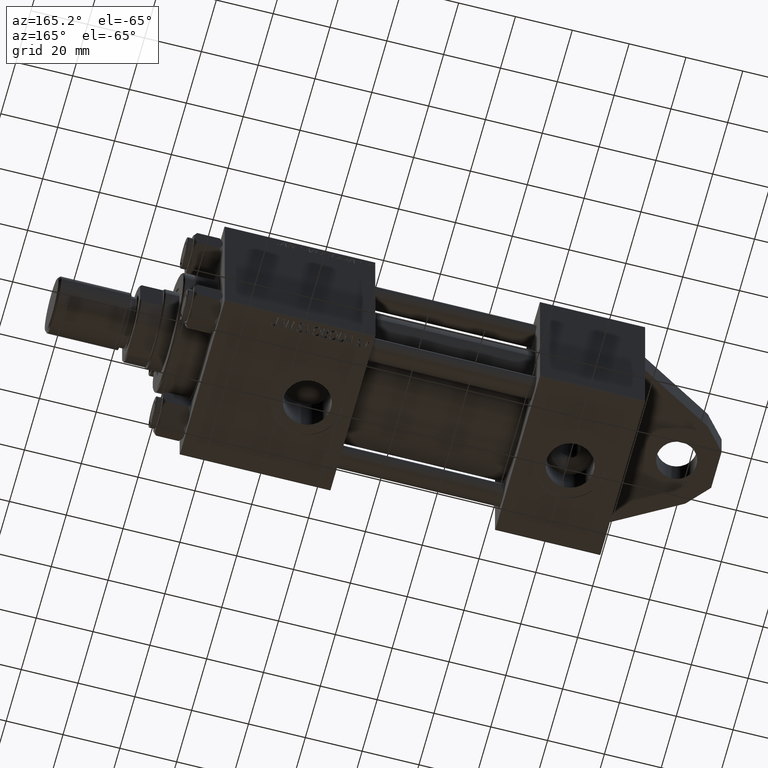
[diagram: clean part render]
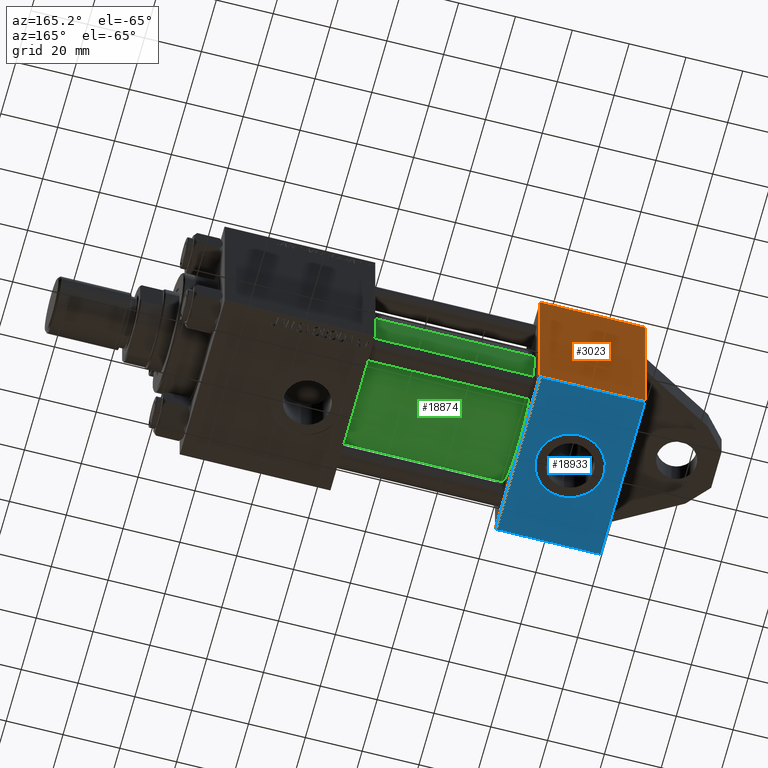
[diagram: same view with three faces highlighted in distinct colors, each labeled with its STEP entity id]
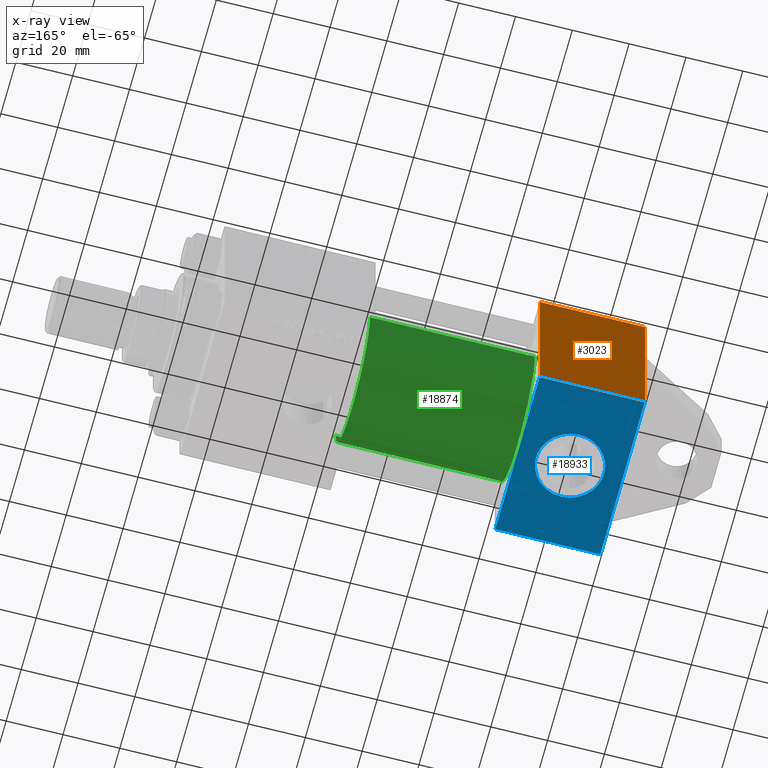
[diagram: x-ray of the same camera — body ghosted, the three highlighted faces saturated]
A machine part, auxiliary view with three faces highlighted in distinct colors.
The next image is the same camera in x-ray (body ghosted, the three faces saturated) — at least one of them is partly hidden behind the body in this view.
Their STEP definitions:

[orange] entity #3023 — the highlighted planar face has unit normal (-0, 1, 0).
#2525 = LINE ( 'NONE', #16876, #14128 ) ;
#3023 = ADVANCED_FACE ( 'NONE', ( #33371 ), #11072, .T. ) ;
#3235 = CARTESIAN_POINT ( 'NONE',  ( 0.000000000000000000, 29.99999999999999289, -30.00000000000000000 ) ) ;
#3780 = DIRECTION ( 'NONE',  ( 0.000000000000000000, 1.156482317317871725E-16, -1.000000000000000000 ) ) ;
#4664 = CARTESIAN_POINT ( 'NONE',  ( 0.000000000000000000, 5.000000000000000000, -30.00000000000000711 ) ) ;
#8124 = ORIENTED_EDGE ( 'NONE', *, *, #33372, .F. ) ;
#8287 = VERTEX_POINT ( 'NONE', #29340 ) ;
#8864 = DIRECTION ( 'NONE',  ( 0.000000000000000000, 1.000000000000000000, 0.000000000000000000 ) ) ;
#9108 = CARTESIAN_POINT ( 'NONE',  ( 37.00000000000000000, 29.49999999999997868, -30.00000000000000000 ) ) ;
#11072 = PLANE ( 'NONE',  #34641 ) ;
#12636 = DIRECTION ( 'NONE',  ( 1.000000000000000000, 0.000000000000000000, 0.000000000000000000 ) ) ;
#12799 = EDGE_CURVE ( 'NONE', #19713, #13568, #24653, .T. ) ;
#13568 = VERTEX_POINT ( 'NONE', #40231 ) ;
#14128 = VECTOR ( 'NONE', #22258, 1000.000000000000000 ) ;
#14929 = VECTOR ( 'NONE', #12636, 1000.000000000000000 ) ;
#16665 = CARTESIAN_POINT ( 'NONE',  ( 0.000000000000000000, -29.50000000000001066, -30.00000000000000711 ) ) ;
#16876 = CARTESIAN_POINT ( 'NONE',  ( 37.00000000000000000, 29.99999999999999289, -30.00000000000000000 ) ) ;
#18243 = ORIENTED_EDGE ( 'NONE', *, *, #40310, .T. ) ;
#19713 = VERTEX_POINT ( 'NONE', #28397 ) ;
#21645 = DIRECTION ( 'NONE',  ( 0.000000000000000000, 1.000000000000000000, 1.156482317317871725E-16 ) ) ;
#21669 = ORIENTED_EDGE ( 'NONE', *, *, #42961, .T. ) ;
#22258 = DIRECTION ( 'NONE',  ( 0.000000000000000000, -1.000000000000000000, -1.156482317317871725E-16 ) ) ;
#23156 = ORIENTED_EDGE ( 'NONE', *, *, #44767, .T. ) ;
#24328 = LINE ( 'NONE', #32082, #31926 ) ;
#24653 = LINE ( 'NONE', #3235, #41689 ) ;
#24857 = ORIENTED_EDGE ( 'NONE', *, *, #32729, .T. ) ;
#24909 = LINE ( 'NONE', #16665, #37898 ) ;
#26450 = CARTESIAN_POINT ( 'NONE',  ( 37.00000000000000000, 29.49999999999997868, -30.00000000000000000 ) ) ;
#26649 = VERTEX_POINT ( 'NONE', #26450 ) ;
#26730 = CARTESIAN_POINT ( 'NONE',  ( 0.000000000000000000, -5.000000000000000000, -30.00000000000000711 ) ) ;
#28215 = EDGE_LOOP ( 'NONE', ( #8124, #21669, #23156, #24857, #38469, #18243 ) ) ;
#28397 = CARTESIAN_POINT ( 'NONE',  ( 0.000000000000000000, -4.999999999999984013, -30.00000000000000355 ) ) ;
#29340 = CARTESIAN_POINT ( 'NONE',  ( 37.00000000000000000, -29.50000000000000000, -30.00000000000000711 ) ) ;
#31926 = VECTOR ( 'NONE', #38684, 1000.000000000000000 ) ;
#32082 = CARTESIAN_POINT ( 'NONE',  ( 0.000000000000000000, 29.99999999999999289, -30.00000000000000000 ) ) ;
#32729 = EDGE_CURVE ( 'NONE', #8287, #13568, #24909, .T. ) ;
#33371 = FACE_OUTER_BOUND ( 'NONE', #28215, .T. ) ;
#33372 = EDGE_CURVE ( 'NONE', #42127, #37783, #24328, .T. ) ;
#33793 = CARTESIAN_POINT ( 'NONE',  ( 0.000000000000000000, 29.49999999999997868, -30.00000000000000000 ) ) ;
#34641 = AXIS2_PLACEMENT_3D ( 'NONE', #43971, #3780, #21645 ) ;
#35009 = DIRECTION ( 'NONE',  ( -1.000000000000000000, 0.000000000000000000, 0.000000000000000000 ) ) ;
#37783 = VERTEX_POINT ( 'NONE', #4664 ) ;
#37898 = VECTOR ( 'NONE', #35009, 1000.000000000000000 ) ;
#38469 = ORIENTED_EDGE ( 'NONE', *, *, #12799, .F. ) ;
#38534 = DIRECTION ( 'NONE',  ( 0.000000000000000000, -1.000000000000000000, -1.156482317317871725E-16 ) ) ;
#38684 = DIRECTION ( 'NONE',  ( 0.000000000000000000, -1.000000000000000000, -1.156482317317871725E-16 ) ) ;
#40231 = CARTESIAN_POINT ( 'NONE',  ( 0.000000000000000000, -29.50000000000000000, -30.00000000000000711 ) ) ;
#40310 = EDGE_CURVE ( 'NONE', #19713, #37783, #44595, .T. ) ;
#41689 = VECTOR ( 'NONE', #38534, 1000.000000000000000 ) ;
#41889 = VECTOR ( 'NONE', #8864, 1000.000000000000000 ) ;
#42026 = LINE ( 'NONE', #9108, #14929 ) ;
#42127 = VERTEX_POINT ( 'NONE', #33793 ) ;
#42961 = EDGE_CURVE ( 'NONE', #42127, #26649, #42026, .T. ) ;
#43971 = CARTESIAN_POINT ( 'NONE',  ( 37.00000000000000000, 29.99999999999999289, -30.00000000000000000 ) ) ;
#44595 = LINE ( 'NONE', #26730, #41889 ) ;
#44767 = EDGE_CURVE ( 'NONE', #26649, #8287, #2525, .T. ) ;

[blue] entity #18933 — the highlighted planar face has unit normal (-0, 0, 1).
#450 = EDGE_CURVE ( 'NONE', #35279, #44678, #23526, .T. ) ;
#1630 = AXIS2_PLACEMENT_3D ( 'NONE', #5736, #37257, #5966 ) ;
#2055 = CARTESIAN_POINT ( 'NONE',  ( 0.000000000000000000, -30.00000000000000000, 29.49999999999999289 ) ) ;
#2372 = EDGE_CURVE ( 'NONE', #18801, #30325, #45216, .T. ) ;
#2724 = FACE_BOUND ( 'NONE', #3277, .T. ) ;
#3277 = EDGE_LOOP ( 'NONE', ( #4577, #17085 ) ) ;
#3351 = CARTESIAN_POINT ( 'NONE',  ( 18.50000000000000000, -30.00000000000000000, 0.000000000000000000 ) ) ;
#3471 = DIRECTION ( 'NONE',  ( 1.000000000000000000, 0.000000000000000000, 0.000000000000000000 ) ) ;
#4577 = ORIENTED_EDGE ( 'NONE', *, *, #2372, .F. ) ;
#4801 = EDGE_LOOP ( 'NONE', ( #9796, #43395, #30570, #46479 ) ) ;
#5412 = EDGE_CURVE ( 'NONE', #35279, #43360, #14278, .T. ) ;
#5736 = CARTESIAN_POINT ( 'NONE',  ( 18.50000000000000000, -30.00000000000000000, 0.000000000000000000 ) ) ;
#5966 = DIRECTION ( 'NONE',  ( 0.000000000000000000, 0.000000000000000000, -1.000000000000000000 ) ) ;
#6499 = FACE_OUTER_BOUND ( 'NONE', #4801, .T. ) ;
#7547 = EDGE_CURVE ( 'NONE', #30325, #18801, #29489, .T. ) ;
#9049 = CARTESIAN_POINT ( 'NONE',  ( 37.00000000000000000, -30.00000000000000000, -29.50000000000001776 ) ) ;
#9796 = ORIENTED_EDGE ( 'NONE', *, *, #43072, .T. ) ;
#13779 = DIRECTION ( 'NONE',  ( -0.000000000000000000, 1.000000000000000000, 0.000000000000000000 ) ) ;
#14278 = LINE ( 'NONE', #32598, #17429 ) ;
#15633 = LINE ( 'NONE', #22230, #23215 ) ;
#17085 = ORIENTED_EDGE ( 'NONE', *, *, #7547, .F. ) ;
#17429 = VECTOR ( 'NONE', #46497, 1000.000000000000000 ) ;
#17540 = DIRECTION ( 'NONE',  ( 0.000000000000000000, -0.000000000000000000, 1.000000000000000000 ) ) ;
#18801 = VERTEX_POINT ( 'NONE', #19975 ) ;
#18933 = ADVANCED_FACE ( 'NONE', ( #2724, #6499 ), #20828, .F. ) ;
#19975 = CARTESIAN_POINT ( 'NONE',  ( 18.50000000000000000, -30.00000000000000000, -12.00000000000000178 ) ) ;
#20362 = CARTESIAN_POINT ( 'NONE',  ( 0.000000000000000000, -30.00000000000000000, -29.50000000000001776 ) ) ;
#20828 = PLANE ( 'NONE',  #41756 ) ;
#22230 = CARTESIAN_POINT ( 'NONE',  ( 0.000000000000000000, -30.00000000000000000, 29.99999999999999289 ) ) ;
#23215 = VECTOR ( 'NONE', #32825, 1000.000000000000000 ) ;
#23526 = LINE ( 'NONE', #41406, #31244 ) ;
#23642 = CARTESIAN_POINT ( 'NONE',  ( 37.00000000000000000, -30.00000000000000000, 29.49999999999999289 ) ) ;
#23894 = VECTOR ( 'NONE', #3471, 1000.000000000000000 ) ;
#25032 = AXIS2_PLACEMENT_3D ( 'NONE', #3351, #45448, #28290 ) ;
#28290 = DIRECTION ( 'NONE',  ( 0.000000000000000000, 0.000000000000000000, -1.000000000000000000 ) ) ;
#29489 = CIRCLE ( 'NONE', #25032, 12.00000000000000178 ) ;
#30325 = VERTEX_POINT ( 'NONE', #43985 ) ;
#30570 = ORIENTED_EDGE ( 'NONE', *, *, #5412, .F. ) ;
#31244 = VECTOR ( 'NONE', #42114, 1000.000000000000000 ) ;
#32598 = CARTESIAN_POINT ( 'NONE',  ( 37.00000000000000000, -30.00000000000000000, 29.99999999999999289 ) ) ;
#32825 = DIRECTION ( 'NONE',  ( 0.000000000000000000, 0.000000000000000000, -1.000000000000000000 ) ) ;
#35279 = VERTEX_POINT ( 'NONE', #23642 ) ;
#37257 = DIRECTION ( 'NONE',  ( 0.000000000000000000, -1.000000000000000000, -8.673617379884036705E-17 ) ) ;
#39649 = VERTEX_POINT ( 'NONE', #20362 ) ;
#39918 = CARTESIAN_POINT ( 'NONE',  ( 37.00000000000000000, -30.00000000000000000, -29.50000000000001776 ) ) ;
#41406 = CARTESIAN_POINT ( 'NONE',  ( 37.00000000000000000, -30.00000000000000000, 29.49999999999999289 ) ) ;
#41537 = CARTESIAN_POINT ( 'NONE',  ( 37.00000000000000000, -30.00000000000000000, 29.99999999999999289 ) ) ;
#41756 = AXIS2_PLACEMENT_3D ( 'NONE', #41537, #13779, #17540 ) ;
#42114 = DIRECTION ( 'NONE',  ( -1.000000000000000000, 0.000000000000000000, 0.000000000000000000 ) ) ;
#43072 = EDGE_CURVE ( 'NONE', #44678, #39649, #15633, .T. ) ;
#43360 = VERTEX_POINT ( 'NONE', #9049 ) ;
#43395 = ORIENTED_EDGE ( 'NONE', *, *, #44784, .T. ) ;
#43674 = LINE ( 'NONE', #39918, #23894 ) ;
#43985 = CARTESIAN_POINT ( 'NONE',  ( 18.50000000000000000, -30.00000000000000000, 12.00000000000000178 ) ) ;
#44678 = VERTEX_POINT ( 'NONE', #2055 ) ;
#44784 = EDGE_CURVE ( 'NONE', #39649, #43360, #43674, .T. ) ;
#45216 = CIRCLE ( 'NONE', #1630, 12.00000000000000178 ) ;
#45448 = DIRECTION ( 'NONE',  ( 0.000000000000000000, -1.000000000000000000, -8.673617379884036705E-17 ) ) ;
#46479 = ORIENTED_EDGE ( 'NONE', *, *, #450, .T. ) ;
#46497 = DIRECTION ( 'NONE',  ( 0.000000000000000000, 0.000000000000000000, -1.000000000000000000 ) ) ;

[green] entity #18874 — the highlighted cylindrical surface (partial cylindrical patch) has radius 23 mm, axis along (-1, -0, 0).
#873 = CARTESIAN_POINT ( 'NONE',  ( 95.00000000000000000, -2.602085213965210642E-15, 23.00000000000000000 ) ) ;
#1410 = VECTOR ( 'NONE', #26880, 1000.000000000000000 ) ;
#2061 = CARTESIAN_POINT ( 'NONE',  ( 95.00000000000000000, -2.602085213965210642E-15, 0.000000000000000000 ) ) ;
#3272 = DIRECTION ( 'NONE',  ( 0.000000000000000000, 0.000000000000000000, 1.000000000000000000 ) ) ;
#5707 = AXIS2_PLACEMENT_3D ( 'NONE', #21377, #31973, #3272 ) ;
#6118 = EDGE_LOOP ( 'NONE', ( #19707, #37148, #29829, #12876 ) ) ;
#6400 = DIRECTION ( 'NONE',  ( 1.000000000000000000, -0.000000000000000000, 0.000000000000000000 ) ) ;
#7465 = VECTOR ( 'NONE', #26514, 1000.000000000000000 ) ;
#8087 = CIRCLE ( 'NONE', #8822, 23.00000000000000000 ) ;
#8822 = AXIS2_PLACEMENT_3D ( 'NONE', #2061, #9833, #19935 ) ;
#9833 = DIRECTION ( 'NONE',  ( 1.000000000000000000, 0.000000000000000000, 0.000000000000000000 ) ) ;
#11082 = CIRCLE ( 'NONE', #26841, 23.00000000000000000 ) ;
#12539 = LINE ( 'NONE', #40992, #1410 ) ;
#12876 = ORIENTED_EDGE ( 'NONE', *, *, #39313, .T. ) ;
#15008 = CARTESIAN_POINT ( 'NONE',  ( 37.00000000000000000, -2.602085213965210642E-15, 23.00000000000000000 ) ) ;
#18874 = ADVANCED_FACE ( 'NONE', ( #32208 ), #28693, .T. ) ;
#19707 = ORIENTED_EDGE ( 'NONE', *, *, #30154, .F. ) ;
#19935 = DIRECTION ( 'NONE',  ( 0.000000000000000000, 0.000000000000000000, -1.000000000000000000 ) ) ;
#20146 = VERTEX_POINT ( 'NONE', #30390 ) ;
#21377 = CARTESIAN_POINT ( 'NONE',  ( 95.00000000000000000, -2.602085213965210642E-15, 0.000000000000000000 ) ) ;
#22848 = CARTESIAN_POINT ( 'NONE',  ( 95.00000000000000000, 2.146024240737012665E-16, -23.00000000000000000 ) ) ;
#23810 = CARTESIAN_POINT ( 'NONE',  ( 37.00000000000000000, -2.602085213965210642E-15, 0.000000000000000000 ) ) ;
#26514 = DIRECTION ( 'NONE',  ( -1.000000000000000000, -0.000000000000000000, -0.000000000000000000 ) ) ;
#26841 = AXIS2_PLACEMENT_3D ( 'NONE', #23810, #6400, #44971 ) ;
#26880 = DIRECTION ( 'NONE',  ( -1.000000000000000000, -0.000000000000000000, -0.000000000000000000 ) ) ;
#27554 = VERTEX_POINT ( 'NONE', #15008 ) ;
#28693 = CYLINDRICAL_SURFACE ( 'NONE', #5707, 23.00000000000000000 ) ;
#29829 = ORIENTED_EDGE ( 'NONE', *, *, #43860, .T. ) ;
#30154 = EDGE_CURVE ( 'NONE', #40922, #20146, #12539, .T. ) ;
#30385 = VERTEX_POINT ( 'NONE', #35228 ) ;
#30390 = CARTESIAN_POINT ( 'NONE',  ( 37.00000000000000000, 2.146024240737012665E-16, -23.00000000000000000 ) ) ;
#31973 = DIRECTION ( 'NONE',  ( -1.000000000000000000, -0.000000000000000000, -0.000000000000000000 ) ) ;
#32208 = FACE_OUTER_BOUND ( 'NONE', #6118, .T. ) ;
#33337 = LINE ( 'NONE', #873, #7465 ) ;
#35228 = CARTESIAN_POINT ( 'NONE',  ( 95.00000000000000000, -2.602085213965210642E-15, 23.00000000000000000 ) ) ;
#37148 = ORIENTED_EDGE ( 'NONE', *, *, #38929, .F. ) ;
#38929 = EDGE_CURVE ( 'NONE', #30385, #40922, #8087, .T. ) ;
#39313 = EDGE_CURVE ( 'NONE', #27554, #20146, #11082, .T. ) ;
#40922 = VERTEX_POINT ( 'NONE', #22848 ) ;
#40992 = CARTESIAN_POINT ( 'NONE',  ( 95.00000000000000000, 2.146024240737012665E-16, -23.00000000000000000 ) ) ;
#43860 = EDGE_CURVE ( 'NONE', #30385, #27554, #33337, .T. ) ;
#44971 = DIRECTION ( 'NONE',  ( 0.000000000000000000, 0.000000000000000000, 1.000000000000000000 ) ) ;